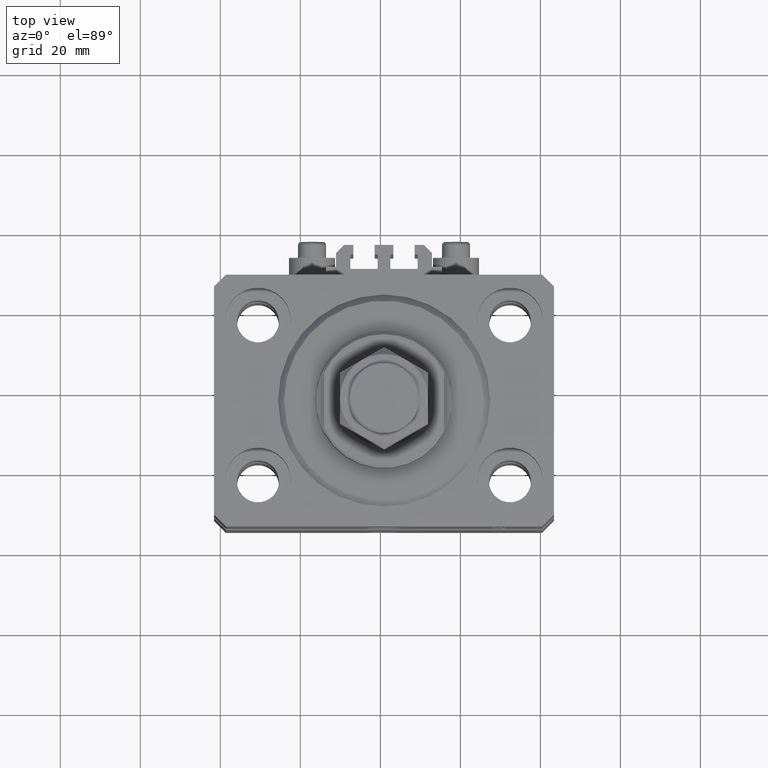
[diagram: clean part render]
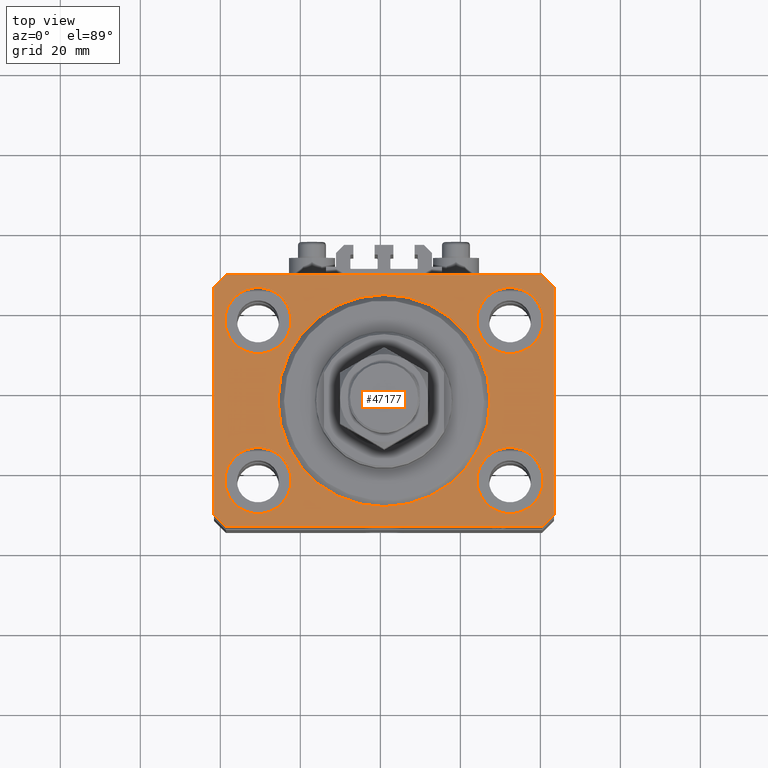
[diagram: same view with one face highlighted and labeled with its STEP entity id]
A machine part, top view. The second image highlights one B-rep face of the part: STEP entity #47177.
In plain terms, the highlighted planar face has unit normal (0, 0, 1).
Its self-contained STEP definition (entity closure, byte-faithful):
#20 = ORIENTED_EDGE ( 'NONE', *, *, #18799, .T. ) ;
#723 = CARTESIAN_POINT ( 'NONE',  ( 42.50000000000051870, 28.49999999999995381, 0.000000000000000000 ) ) ;
#931 = DIRECTION ( 'NONE',  ( -1.000000000000000000, 0.000000000000000000, 0.000000000000000000 ) ) ;
#965 = EDGE_CURVE ( 'NONE', #22990, #17982, #18920, .T. ) ;
#991 = EDGE_LOOP ( 'NONE', ( #33416, #44118, #20, #17964, #32984, #24800, #29657, #45011 ) ) ;
#1337 = DIRECTION ( 'NONE',  ( 0.000000000000000000, 0.000000000000000000, 1.000000000000000000 ) ) ;
#1444 = VERTEX_POINT ( 'NONE', #15111 ) ;
#1696 = VECTOR ( 'NONE', #46539, 1000.000000000000000 ) ;
#1770 = VERTEX_POINT ( 'NONE', #6980 ) ;
#1929 = VERTEX_POINT ( 'NONE', #28885 ) ;
#3008 = AXIS2_PLACEMENT_3D ( 'NONE', #9133, #43740, #17318 ) ;
#3105 = EDGE_CURVE ( 'NONE', #1444, #35075, #6876, .T. ) ;
#3134 = DIRECTION ( 'NONE',  ( 1.000000000000000000, 0.000000000000000000, -0.000000000000000000 ) ) ;
#3283 = EDGE_CURVE ( 'NONE', #19567, #18035, #23644, .T. ) ;
#3378 = ORIENTED_EDGE ( 'NONE', *, *, #3283, .F. ) ;
#4037 = EDGE_CURVE ( 'NONE', #18035, #19567, #38804, .T. ) ;
#4245 = EDGE_CURVE ( 'NONE', #44273, #22850, #22853, .T. ) ;
#4330 = DIRECTION ( 'NONE',  ( 0.000000000000000000, 0.000000000000000000, 1.000000000000000000 ) ) ;
#4848 = DIRECTION ( 'NONE',  ( 0.000000000000000000, 0.000000000000000000, 1.000000000000000000 ) ) ;
#4960 = AXIS2_PLACEMENT_3D ( 'NONE', #41474, #8087, #15553 ) ;
#5072 = CARTESIAN_POINT ( 'NONE',  ( 23.25000000000000355, -20.00000000000000000, 0.000000000000000000 ) ) ;
#5544 = EDGE_CURVE ( 'NONE', #16621, #1770, #23346, .T. ) ;
#5811 = LINE ( 'NONE', #31476, #12134 ) ;
#6034 = ORIENTED_EDGE ( 'NONE', *, *, #48622, .F. ) ;
#6050 = CARTESIAN_POINT ( 'NONE',  ( -42.50000000000000000, -28.50000000000000000, 0.000000000000000000 ) ) ;
#6326 = EDGE_CURVE ( 'NONE', #24259, #13547, #28871, .T. ) ;
#6465 = DIRECTION ( 'NONE',  ( -0.7071067811865471286, -0.7071067811865479058, 0.000000000000000000 ) ) ;
#6469 = CARTESIAN_POINT ( 'NONE',  ( -26.50000000000000355, 3.245314017740486554E-15, 0.000000000000000000 ) ) ;
#6720 = CARTESIAN_POINT ( 'NONE',  ( -39.50000000000000711, 31.50000000000000000, 0.000000000000000000 ) ) ;
#6869 = FACE_BOUND ( 'NONE', #31317, .T. ) ;
#6876 = LINE ( 'NONE', #21545, #38760 ) ;
#6980 = CARTESIAN_POINT ( 'NONE',  ( 39.50000000000056843, 31.50000000000000000, 0.000000000000000000 ) ) ;
#6987 = AXIS2_PLACEMENT_3D ( 'NONE', #24462, #1337, #27977 ) ;
#7054 = DIRECTION ( 'NONE',  ( 1.000000000000000000, 0.000000000000000000, 0.000000000000000000 ) ) ;
#7113 = FACE_OUTER_BOUND ( 'NONE', #991, .T. ) ;
#7767 = LINE ( 'NONE', #42151, #38433 ) ;
#7918 = EDGE_LOOP ( 'NONE', ( #30716, #39822 ) ) ;
#8087 = DIRECTION ( 'NONE',  ( 0.000000000000000000, 0.000000000000000000, 1.000000000000000000 ) ) ;
#8984 = ORIENTED_EDGE ( 'NONE', *, *, #27518, .F. ) ;
#9133 = CARTESIAN_POINT ( 'NONE',  ( 0.000000000000000000, 0.000000000000000000, 0.000000000000000000 ) ) ;
#11083 = PLANE ( 'NONE',  #27229 ) ;
#11224 = DIRECTION ( 'NONE',  ( 0.000000000000000000, 0.000000000000000000, 1.000000000000000000 ) ) ;
#11328 = FACE_BOUND ( 'NONE', #27438, .T. ) ;
#11429 = LINE ( 'NONE', #15893, #1696 ) ;
#12134 = VECTOR ( 'NONE', #35929, 1000.000000000000000 ) ;
#13171 = VECTOR ( 'NONE', #931, 1000.000000000000000 ) ;
#13547 = VERTEX_POINT ( 'NONE', #25715 ) ;
#14807 = CARTESIAN_POINT ( 'NONE',  ( 0.000000000000000000, 0.000000000000000000, 0.000000000000000000 ) ) ;
#15111 = CARTESIAN_POINT ( 'NONE',  ( -39.50000000000000711, -31.50000000000000000, 0.000000000000000000 ) ) ;
#15553 = DIRECTION ( 'NONE',  ( 1.000000000000000000, 0.000000000000000000, 0.000000000000000000 ) ) ;
#15893 = CARTESIAN_POINT ( 'NONE',  ( 42.50000000000000711, -28.50000000000000355, 0.000000000000000000 ) ) ;
#16621 = VERTEX_POINT ( 'NONE', #24206 ) ;
#16757 = CARTESIAN_POINT ( 'NONE',  ( 0.000000000000000000, 0.000000000000000000, 0.000000000000000000 ) ) ;
#16874 = DIRECTION ( 'NONE',  ( 1.000000000000000000, 0.000000000000000000, 0.000000000000000000 ) ) ;
#17318 = DIRECTION ( 'NONE',  ( 1.000000000000000000, 0.000000000000000000, 0.000000000000000000 ) ) ;
#17570 = CARTESIAN_POINT ( 'NONE',  ( 23.25000000000000355, 20.00000000000001066, 0.000000000000000000 ) ) ;
#17581 = DIRECTION ( 'NONE',  ( 1.000000000000000000, 0.000000000000000000, 0.000000000000000000 ) ) ;
#17635 = CARTESIAN_POINT ( 'NONE',  ( 26.50000000000000355, 0.000000000000000000, 0.000000000000000000 ) ) ;
#17896 = VERTEX_POINT ( 'NONE', #18161 ) ;
#17964 = ORIENTED_EDGE ( 'NONE', *, *, #19005, .T. ) ;
#17982 = VERTEX_POINT ( 'NONE', #22137 ) ;
#18035 = VERTEX_POINT ( 'NONE', #6469 ) ;
#18161 = CARTESIAN_POINT ( 'NONE',  ( -23.25000000000000000, 20.00000000000000000, 0.000000000000000000 ) ) ;
#18559 = DIRECTION ( 'NONE',  ( 0.000000000000000000, 0.000000000000000000, 1.000000000000000000 ) ) ;
#18707 = EDGE_CURVE ( 'NONE', #35075, #36034, #5811, .T. ) ;
#18799 = EDGE_CURVE ( 'NONE', #13547, #25998, #25208, .T. ) ;
#18920 = CIRCLE ( 'NONE', #48327, 8.250000000000000000 ) ;
#19005 = EDGE_CURVE ( 'NONE', #25998, #1444, #7767, .T. ) ;
#19051 = CIRCLE ( 'NONE', #46893, 8.250000000000000000 ) ;
#19529 = DIRECTION ( 'NONE',  ( 1.000000000000000000, 0.000000000000000000, 0.000000000000000000 ) ) ;
#19567 = VERTEX_POINT ( 'NONE', #17635 ) ;
#20414 = CIRCLE ( 'NONE', #46689, 8.249999999999992895 ) ;
#21207 = CIRCLE ( 'NONE', #22809, 8.250000000000000000 ) ;
#21545 = CARTESIAN_POINT ( 'NONE',  ( -39.50000000000000711, -31.50000000000000000, 0.000000000000000000 ) ) ;
#22137 = CARTESIAN_POINT ( 'NONE',  ( -39.75000000000000000, -20.00000000000000000, 0.000000000000000000 ) ) ;
#22809 = AXIS2_PLACEMENT_3D ( 'NONE', #31823, #39783, #16874 ) ;
#22850 = VERTEX_POINT ( 'NONE', #17570 ) ;
#22853 = CIRCLE ( 'NONE', #6987, 8.249999999999992895 ) ;
#22990 = VERTEX_POINT ( 'NONE', #30261 ) ;
#23224 = CARTESIAN_POINT ( 'NONE',  ( -31.50000000000000000, -20.00000000000000000, 0.000000000000000000 ) ) ;
#23229 = ORIENTED_EDGE ( 'NONE', *, *, #4245, .F. ) ;
#23305 = CIRCLE ( 'NONE', #39964, 8.249999999999992895 ) ;
#23346 = LINE ( 'NONE', #723, #49188 ) ;
#23644 = CIRCLE ( 'NONE', #44319, 26.50000000000000355 ) ;
#24206 = CARTESIAN_POINT ( 'NONE',  ( 42.50000000000051870, 28.49999999999995381, 0.000000000000000000 ) ) ;
#24248 = DIRECTION ( 'NONE',  ( 1.000000000000000000, 0.000000000000000000, 0.000000000000000000 ) ) ;
#24259 = VERTEX_POINT ( 'NONE', #38919 ) ;
#24462 = CARTESIAN_POINT ( 'NONE',  ( 31.50000000000000000, 20.00000000000001066, 0.000000000000000000 ) ) ;
#24800 = ORIENTED_EDGE ( 'NONE', *, *, #18707, .T. ) ;
#25208 = LINE ( 'NONE', #28961, #47950 ) ;
#25576 = EDGE_CURVE ( 'NONE', #1770, #24259, #46002, .T. ) ;
#25715 = CARTESIAN_POINT ( 'NONE',  ( -42.50000000000000000, 28.50000000000000000, 0.000000000000000000 ) ) ;
#25791 = CARTESIAN_POINT ( 'NONE',  ( 42.50000000000000711, -28.50000000000000355, 0.000000000000000000 ) ) ;
#25998 = VERTEX_POINT ( 'NONE', #6050 ) ;
#26414 = DIRECTION ( 'NONE',  ( 1.000000000000000000, 0.000000000000000000, 0.000000000000000000 ) ) ;
#26753 = FACE_BOUND ( 'NONE', #38744, .T. ) ;
#27059 = ORIENTED_EDGE ( 'NONE', *, *, #4037, .F. ) ;
#27229 = AXIS2_PLACEMENT_3D ( 'NONE', #14807, #18559, #3134 ) ;
#27438 = EDGE_LOOP ( 'NONE', ( #48171, #32216 ) ) ;
#27518 = EDGE_CURVE ( 'NONE', #22850, #44273, #20414, .T. ) ;
#27697 = EDGE_CURVE ( 'NONE', #17896, #39894, #21207, .T. ) ;
#27977 = DIRECTION ( 'NONE',  ( 1.000000000000000000, 0.000000000000000000, 0.000000000000000000 ) ) ;
#28791 = DIRECTION ( 'NONE',  ( 0.000000000000000000, 0.000000000000000000, 1.000000000000000000 ) ) ;
#28871 = LINE ( 'NONE', #6720, #49227 ) ;
#28885 = CARTESIAN_POINT ( 'NONE',  ( 39.74999999999999289, -20.00000000000000000, 0.000000000000000000 ) ) ;
#28961 = CARTESIAN_POINT ( 'NONE',  ( -42.50000000000000000, 28.50000000000000000, 0.000000000000000000 ) ) ;
#29027 = DIRECTION ( 'NONE',  ( 1.000000000000000000, 0.000000000000000000, 0.000000000000000000 ) ) ;
#29657 = ORIENTED_EDGE ( 'NONE', *, *, #45477, .T. ) ;
#30261 = CARTESIAN_POINT ( 'NONE',  ( -23.25000000000000000, -20.00000000000000000, 0.000000000000000000 ) ) ;
#30716 = ORIENTED_EDGE ( 'NONE', *, *, #965, .F. ) ;
#31317 = EDGE_LOOP ( 'NONE', ( #3378, #27059 ) ) ;
#31476 = CARTESIAN_POINT ( 'NONE',  ( 39.50000000000000711, -31.50000000000000000, 0.000000000000000000 ) ) ;
#31523 = CARTESIAN_POINT ( 'NONE',  ( 39.50000000000056843, 31.50000000000000000, 0.000000000000000000 ) ) ;
#31738 = ORIENTED_EDGE ( 'NONE', *, *, #43017, .F. ) ;
#31802 = CARTESIAN_POINT ( 'NONE',  ( -39.75000000000000000, 20.00000000000000000, 0.000000000000000000 ) ) ;
#31823 = CARTESIAN_POINT ( 'NONE',  ( -31.50000000000000000, 20.00000000000000000, 0.000000000000000000 ) ) ;
#32096 = EDGE_LOOP ( 'NONE', ( #31738, #6034 ) ) ;
#32216 = ORIENTED_EDGE ( 'NONE', *, *, #47384, .F. ) ;
#32984 = ORIENTED_EDGE ( 'NONE', *, *, #3105, .T. ) ;
#33345 = CARTESIAN_POINT ( 'NONE',  ( 39.74999999999999289, 20.00000000000001066, 0.000000000000000000 ) ) ;
#33416 = ORIENTED_EDGE ( 'NONE', *, *, #25576, .T. ) ;
#35075 = VERTEX_POINT ( 'NONE', #46655 ) ;
#35228 = DIRECTION ( 'NONE',  ( 0.000000000000000000, 0.000000000000000000, 1.000000000000000000 ) ) ;
#35929 = DIRECTION ( 'NONE',  ( 0.7071067811865483499, 0.7071067811865466846, 0.000000000000000000 ) ) ;
#35982 = CIRCLE ( 'NONE', #47133, 8.250000000000000000 ) ;
#36034 = VERTEX_POINT ( 'NONE', #25791 ) ;
#36756 = CIRCLE ( 'NONE', #4960, 8.249999999999992895 ) ;
#37398 = EDGE_CURVE ( 'NONE', #17982, #22990, #19051, .T. ) ;
#37922 = DIRECTION ( 'NONE',  ( 1.000000000000000000, 0.000000000000000000, 0.000000000000000000 ) ) ;
#38141 = DIRECTION ( 'NONE',  ( 0.7071067811865471286, -0.7071067811865479058, 0.000000000000000000 ) ) ;
#38433 = VECTOR ( 'NONE', #38141, 1000.000000000000000 ) ;
#38744 = EDGE_LOOP ( 'NONE', ( #23229, #8984 ) ) ;
#38760 = VECTOR ( 'NONE', #29027, 1000.000000000000000 ) ;
#38804 = CIRCLE ( 'NONE', #3008, 26.50000000000000355 ) ;
#38919 = CARTESIAN_POINT ( 'NONE',  ( -39.50000000000000711, 31.50000000000000000, 0.000000000000000000 ) ) ;
#38948 = CARTESIAN_POINT ( 'NONE',  ( 31.50000000000000000, 20.00000000000001066, 0.000000000000000000 ) ) ;
#39783 = DIRECTION ( 'NONE',  ( 0.000000000000000000, 0.000000000000000000, 1.000000000000000000 ) ) ;
#39822 = ORIENTED_EDGE ( 'NONE', *, *, #37398, .F. ) ;
#39894 = VERTEX_POINT ( 'NONE', #31802 ) ;
#39964 = AXIS2_PLACEMENT_3D ( 'NONE', #49087, #11224, #26414 ) ;
#40243 = CARTESIAN_POINT ( 'NONE',  ( -31.50000000000000000, -20.00000000000000000, 0.000000000000000000 ) ) ;
#40628 = VERTEX_POINT ( 'NONE', #5072 ) ;
#41161 = CARTESIAN_POINT ( 'NONE',  ( -31.50000000000000000, 20.00000000000000000, 0.000000000000000000 ) ) ;
#41474 = CARTESIAN_POINT ( 'NONE',  ( 31.50000000000000000, -20.00000000000000000, 0.000000000000000000 ) ) ;
#41953 = FACE_BOUND ( 'NONE', #32096, .T. ) ;
#42151 = CARTESIAN_POINT ( 'NONE',  ( -42.50000000000000000, -28.50000000000000000, 0.000000000000000000 ) ) ;
#43017 = EDGE_CURVE ( 'NONE', #1929, #40628, #36756, .T. ) ;
#43740 = DIRECTION ( 'NONE',  ( 0.000000000000000000, 0.000000000000000000, 1.000000000000000000 ) ) ;
#44118 = ORIENTED_EDGE ( 'NONE', *, *, #6326, .T. ) ;
#44273 = VERTEX_POINT ( 'NONE', #33345 ) ;
#44319 = AXIS2_PLACEMENT_3D ( 'NONE', #16757, #35228, #24248 ) ;
#45011 = ORIENTED_EDGE ( 'NONE', *, *, #5544, .T. ) ;
#45453 = FACE_BOUND ( 'NONE', #7918, .T. ) ;
#45477 = EDGE_CURVE ( 'NONE', #36034, #16621, #11429, .T. ) ;
#46002 = LINE ( 'NONE', #31523, #13171 ) ;
#46539 = DIRECTION ( 'NONE',  ( 8.886653596232072440E-15, 1.000000000000000000, 0.000000000000000000 ) ) ;
#46655 = CARTESIAN_POINT ( 'NONE',  ( 39.50000000000000711, -31.50000000000000000, 0.000000000000000000 ) ) ;
#46689 = AXIS2_PLACEMENT_3D ( 'NONE', #38948, #4848, #19529 ) ;
#46893 = AXIS2_PLACEMENT_3D ( 'NONE', #23224, #4330, #37922 ) ;
#47133 = AXIS2_PLACEMENT_3D ( 'NONE', #41161, #48392, #7054 ) ;
#47177 = ADVANCED_FACE ( 'NONE', ( #45453, #41953, #26753, #11328, #6869, #7113 ), #11083, .T. ) ;
#47384 = EDGE_CURVE ( 'NONE', #39894, #17896, #35982, .T. ) ;
#47415 = DIRECTION ( 'NONE',  ( -0.7071067811865356934, 0.7071067811865594521, 0.000000000000000000 ) ) ;
#47888 = DIRECTION ( 'NONE',  ( 0.000000000000000000, -1.000000000000000000, 0.000000000000000000 ) ) ;
#47950 = VECTOR ( 'NONE', #47888, 1000.000000000000000 ) ;
#48171 = ORIENTED_EDGE ( 'NONE', *, *, #27697, .F. ) ;
#48327 = AXIS2_PLACEMENT_3D ( 'NONE', #40243, #28791, #17581 ) ;
#48392 = DIRECTION ( 'NONE',  ( 0.000000000000000000, 0.000000000000000000, 1.000000000000000000 ) ) ;
#48622 = EDGE_CURVE ( 'NONE', #40628, #1929, #23305, .T. ) ;
#49087 = CARTESIAN_POINT ( 'NONE',  ( 31.50000000000000000, -20.00000000000000000, 0.000000000000000000 ) ) ;
#49188 = VECTOR ( 'NONE', #47415, 1000.000000000000114 ) ;
#49227 = VECTOR ( 'NONE', #6465, 1000.000000000000000 ) ;